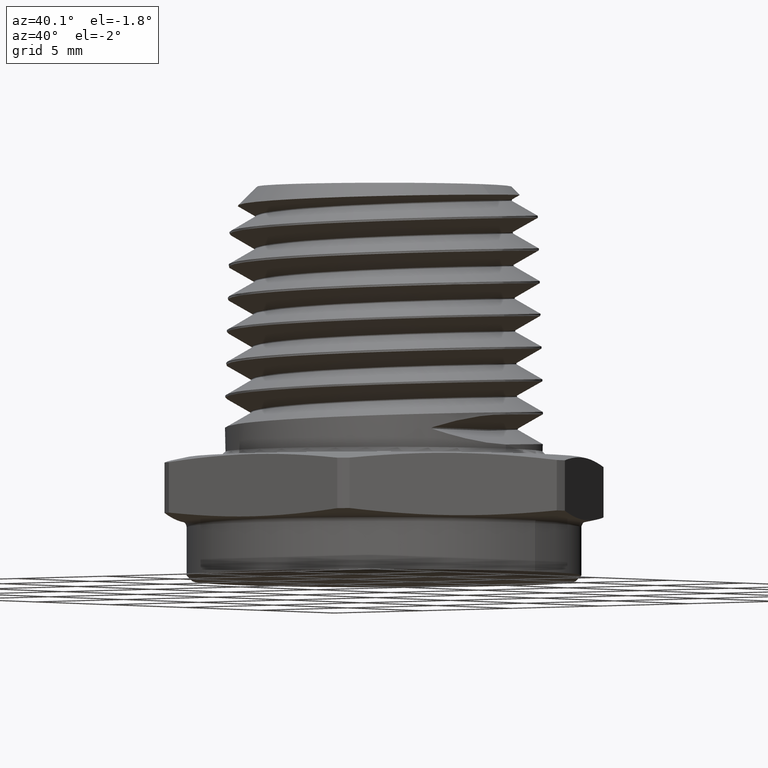
[diagram: clean part render]
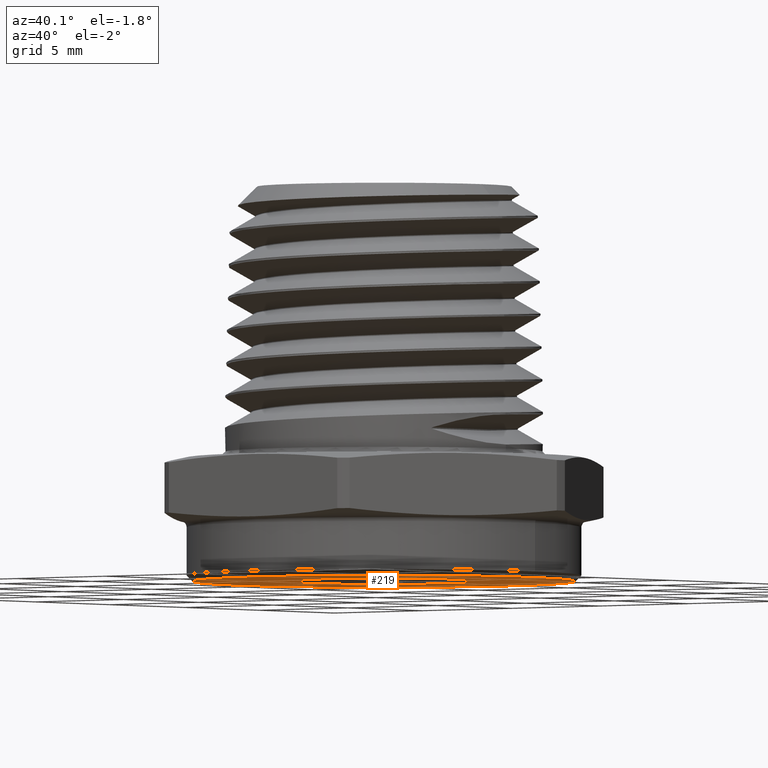
[diagram: same view with one face highlighted and labeled with its STEP entity id]
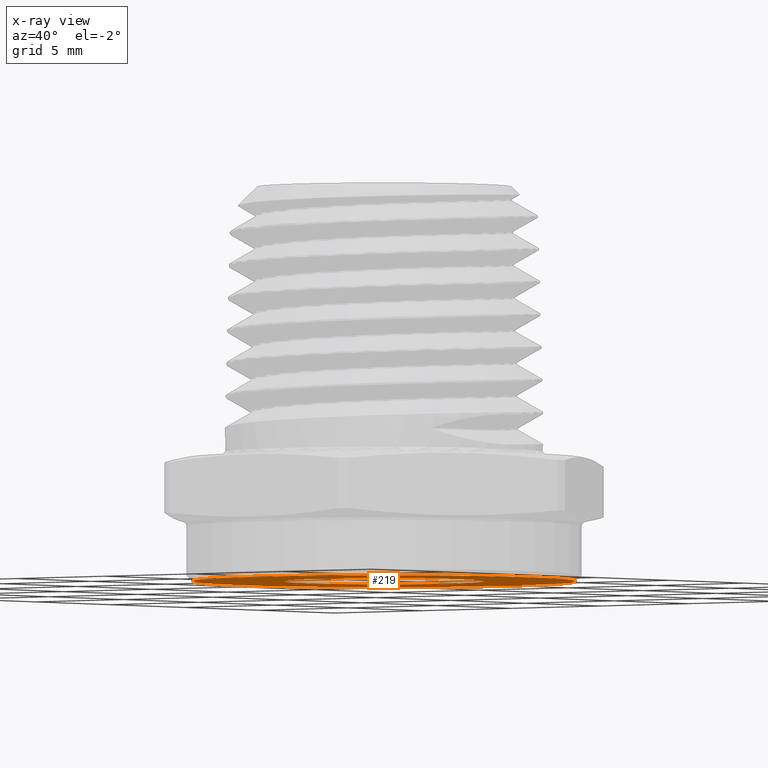
[diagram: x-ray of the same camera — body ghosted, the highlighted face saturated]
A machine part, auxiliary view. The second image highlights one B-rep face of the part: STEP entity #219.
The next image is the same camera in x-ray: the body ghosted, the highlighted face saturated — about 0% of this face is hidden behind the body in this view.
In plain terms, the highlighted planar face has unit normal (0, 0, -1).
Its self-contained STEP definition (entity closure, byte-faithful):
#38 = ORIENTED_EDGE ( 'NONE', *, *, #58, .T. ) ;
#39 = ORIENTED_EDGE ( 'NONE', *, *, #118, .T. ) ;
#40 = ORIENTED_EDGE ( 'NONE', *, *, #119, .T. ) ;
#41 = ORIENTED_EDGE ( 'NONE', *, *, #63, .T. ) ;
#58 = EDGE_CURVE ( 'NONE', #635, #629, #672, .T. ) ;
#63 = EDGE_CURVE ( 'NONE', #630, #640, #680, .T. ) ;
#118 = EDGE_CURVE ( 'NONE', #629, #635, #731, .T. ) ;
#119 = EDGE_CURVE ( 'NONE', #640, #630, #721, .T. ) ;
#219 = ADVANCED_FACE ( 'NONE', ( #812, #820 ), #1813, .T. ) ;
#319 = AXIS2_PLACEMENT_3D ( 'NONE', #923, #924, #925 ) ;
#321 = AXIS2_PLACEMENT_3D ( 'NONE', #935, #936, #937 ) ;
#340 = AXIS2_PLACEMENT_3D ( 'NONE', #1558, #1559, #1560 ) ;
#341 = AXIS2_PLACEMENT_3D ( 'NONE', #1562, #1563, #1564 ) ;
#468 = EDGE_LOOP ( 'NONE', ( #40, #41 ) ) ;
#541 = EDGE_LOOP ( 'NONE', ( #38, #39 ) ) ;
#629 = VERTEX_POINT ( 'NONE', #4943 ) ;
#630 = VERTEX_POINT ( 'NONE', #4946 ) ;
#635 = VERTEX_POINT ( 'NONE', #4911 ) ;
#640 = VERTEX_POINT ( 'NONE', #4953 ) ;
#672 = CIRCLE ( 'NONE', #319, 0.1699999999999999800 ) ;
#680 = CIRCLE ( 'NONE', #321, 0.3249999999999999600 ) ;
#721 = CIRCLE ( 'NONE', #341, 0.3249999999999999600 ) ;
#731 = CIRCLE ( 'NONE', #340, 0.1699999999999999800 ) ;
#812 = FACE_BOUND ( 'NONE', #541, .T. ) ;
#820 = FACE_OUTER_BOUND ( 'NONE', #468, .T. ) ;
#923 = CARTESIAN_POINT ( 'NONE',  ( 7.944211343352838500E-017, 0.0000000000000000000, -0.09999999999999996400 ) ) ;
#924 = DIRECTION ( 'NONE',  ( 0.0000000000000000000, 0.0000000000000000000, 1.000000000000000000 ) ) ;
#925 = DIRECTION ( 'NONE',  ( 1.000000000000000000, 0.0000000000000000000, 0.0000000000000000000 ) ) ;
#935 = CARTESIAN_POINT ( 'NONE',  ( 0.0000000000000000000, 0.0000000000000000000, -0.1000000000000000100 ) ) ;
#936 = DIRECTION ( 'NONE',  ( 0.0000000000000000000, 0.0000000000000000000, -1.000000000000000000 ) ) ;
#937 = DIRECTION ( 'NONE',  ( -1.000000000000000000, 0.0000000000000000000, 0.0000000000000000000 ) ) ;
#1558 = CARTESIAN_POINT ( 'NONE',  ( 7.944211343352838500E-017, 0.0000000000000000000, -0.09999999999999996400 ) ) ;
#1559 = DIRECTION ( 'NONE',  ( 0.0000000000000000000, 0.0000000000000000000, 1.000000000000000000 ) ) ;
#1560 = DIRECTION ( 'NONE',  ( 1.000000000000000000, 0.0000000000000000000, 0.0000000000000000000 ) ) ;
#1562 = CARTESIAN_POINT ( 'NONE',  ( 0.0000000000000000000, 0.0000000000000000000, -0.1000000000000000100 ) ) ;
#1563 = DIRECTION ( 'NONE',  ( 0.0000000000000000000, 0.0000000000000000000, -1.000000000000000000 ) ) ;
#1564 = DIRECTION ( 'NONE',  ( -1.000000000000000000, 0.0000000000000000000, 0.0000000000000000000 ) ) ;
#1722 = AXIS2_PLACEMENT_3D ( 'NONE', #1811, #1810, #1815 ) ;
#1810 = DIRECTION ( 'NONE',  ( 0.0000000000000000000, 0.0000000000000000000, -1.000000000000000000 ) ) ;
#1811 = CARTESIAN_POINT ( 'NONE',  ( 0.0000000000000000000, 0.0000000000000000000, -0.1000000000000000100 ) ) ;
#1813 = PLANE ( 'NONE',  #1722 ) ;
#1815 = DIRECTION ( 'NONE',  ( -1.000000000000000000, 0.0000000000000000000, -0.0000000000000000000 ) ) ;
#4911 = CARTESIAN_POINT ( 'NONE',  ( -0.1699999999999999300, 0.0000000000000000000, -0.09999999999999996400 ) ) ;
#4943 = CARTESIAN_POINT ( 'NONE',  ( 0.1700000000000000700, 2.081899558550500800E-017, -0.09999999999999996400 ) ) ;
#4946 = CARTESIAN_POINT ( 'NONE',  ( -0.3249999999999999600, 4.041334437186265900E-017, -0.1000000000000000100 ) ) ;
#4953 = CARTESIAN_POINT ( 'NONE',  ( 0.3249999999999999600, 0.0000000000000000000, -0.1000000000000000100 ) ) ;